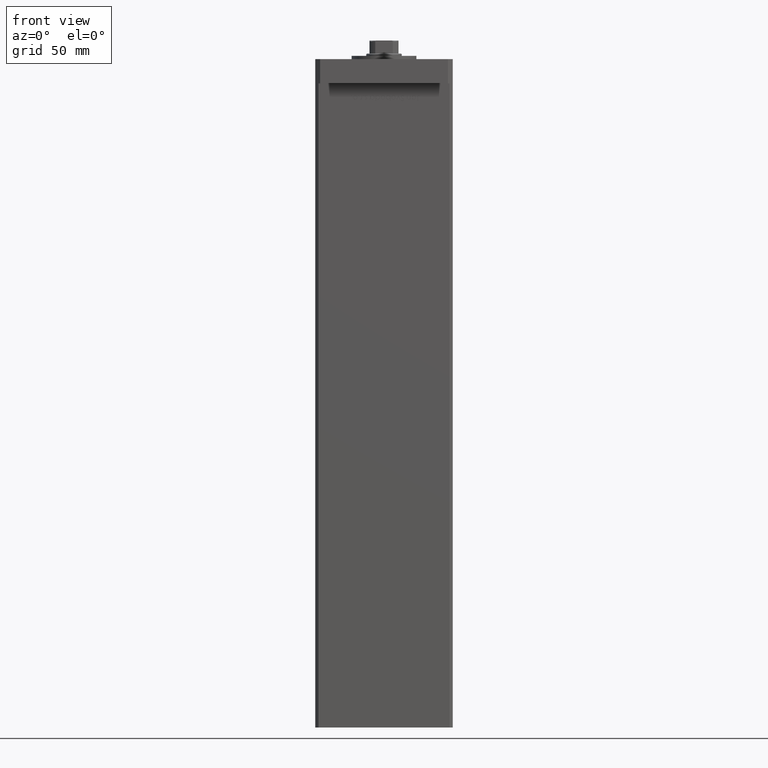
[diagram: clean part render]
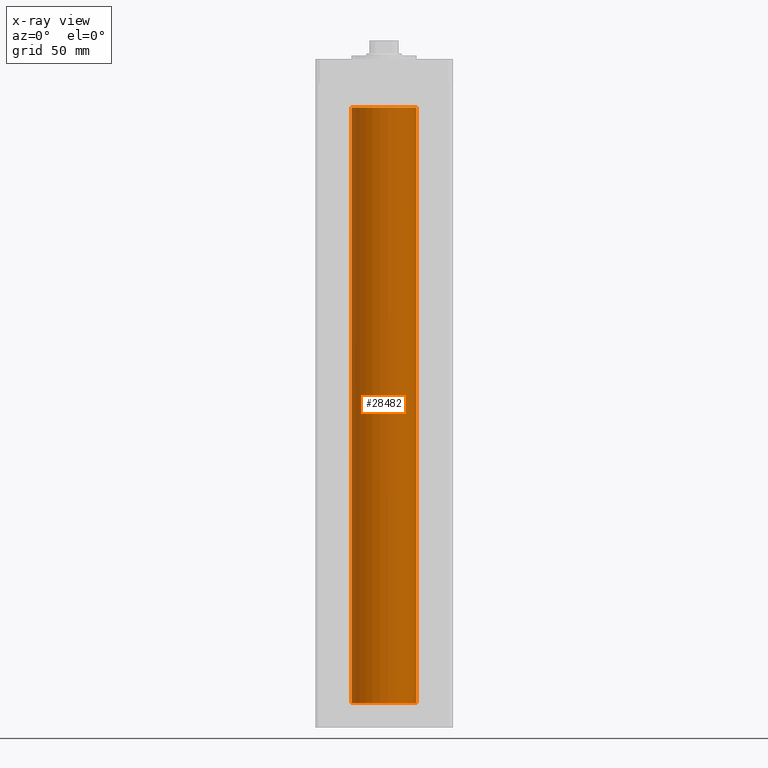
[diagram: x-ray — body ghosted, one internal face saturated and labeled with its STEP entity id]
A machine part, front view, then the same camera in x-ray: the body is ghosted and one INTERNAL B-rep face — a face not visible from any outside direction — is saturated and labeled: STEP entity #28482.
In plain terms, the highlighted cylindrical surface (edge-blend (fillet) strip) has radius 20 mm, axis along (-0, -0, -1).
Its self-contained STEP definition (entity closure, byte-faithful):
#169 = CARTESIAN_POINT ( 'NONE',  ( -20.00000000000000000, 0.000000000000000000, 0.000000000000000000 ) ) ;
#721 = CARTESIAN_POINT ( 'NONE',  ( 0.000000000000000000, 0.000000000000000000, 368.5000000000000000 ) ) ;
#1563 = EDGE_CURVE ( 'NONE', #14499, #13520, #20662, .T. ) ;
#2205 = ORIENTED_EDGE ( 'NONE', *, *, #18758, .T. ) ;
#5276 = CARTESIAN_POINT ( 'NONE',  ( 20.00000000000000000, 2.449293598294706513E-15, 368.5000000000000000 ) ) ;
#5481 = AXIS2_PLACEMENT_3D ( 'NONE', #47864, #10737, #39456 ) ;
#6372 = CARTESIAN_POINT ( 'NONE',  ( 20.00000000000000000, 2.449293598294706513E-15, 368.5000000000000000 ) ) ;
#9121 = VECTOR ( 'NONE', #40671, 1000.000000000000000 ) ;
#10737 = DIRECTION ( 'NONE',  ( -0.000000000000000000, 0.000000000000000000, 1.000000000000000000 ) ) ;
#10990 = LINE ( 'NONE', #6372, #18498 ) ;
#12569 = AXIS2_PLACEMENT_3D ( 'NONE', #721, #34582, #42710 ) ;
#13460 = FACE_OUTER_BOUND ( 'NONE', #15817, .T. ) ;
#13520 = VERTEX_POINT ( 'NONE', #16166 ) ;
#14499 = VERTEX_POINT ( 'NONE', #169 ) ;
#15574 = DIRECTION ( 'NONE',  ( -0.000000000000000000, -0.000000000000000000, -1.000000000000000000 ) ) ;
#15817 = EDGE_LOOP ( 'NONE', ( #20959, #2205, #52757, #39043 ) ) ;
#16166 = CARTESIAN_POINT ( 'NONE',  ( 20.00000000000000000, 2.449293598294706513E-15, 0.000000000000000000 ) ) ;
#18498 = VECTOR ( 'NONE', #15574, 1000.000000000000000 ) ;
#18758 = EDGE_CURVE ( 'NONE', #24092, #13520, #10990, .T. ) ;
#20076 = CARTESIAN_POINT ( 'NONE',  ( -20.00000000000000000, 0.000000000000000000, 368.5000000000000000 ) ) ;
#20662 = CIRCLE ( 'NONE', #24973, 20.00000000000000000 ) ;
#20959 = ORIENTED_EDGE ( 'NONE', *, *, #38566, .T. ) ;
#21655 = CARTESIAN_POINT ( 'NONE',  ( -20.00000000000000000, 0.000000000000000000, 368.5000000000000000 ) ) ;
#24092 = VERTEX_POINT ( 'NONE', #5276 ) ;
#24973 = AXIS2_PLACEMENT_3D ( 'NONE', #50943, #35201, #31131 ) ;
#25365 = CIRCLE ( 'NONE', #5481, 20.00000000000000000 ) ;
#28482 = ADVANCED_FACE ( 'NONE', ( #13460 ), #38652, .F. ) ;
#31131 = DIRECTION ( 'NONE',  ( 1.000000000000000000, 0.000000000000000000, 0.000000000000000000 ) ) ;
#34582 = DIRECTION ( 'NONE',  ( -0.000000000000000000, -0.000000000000000000, -1.000000000000000000 ) ) ;
#35201 = DIRECTION ( 'NONE',  ( -0.000000000000000000, 0.000000000000000000, 1.000000000000000000 ) ) ;
#38135 = VERTEX_POINT ( 'NONE', #21655 ) ;
#38566 = EDGE_CURVE ( 'NONE', #38135, #24092, #25365, .T. ) ;
#38652 = CYLINDRICAL_SURFACE ( 'NONE', #12569, 20.00000000000000000 ) ;
#39043 = ORIENTED_EDGE ( 'NONE', *, *, #49394, .F. ) ;
#39456 = DIRECTION ( 'NONE',  ( 1.000000000000000000, 0.000000000000000000, 0.000000000000000000 ) ) ;
#40671 = DIRECTION ( 'NONE',  ( -0.000000000000000000, -0.000000000000000000, -1.000000000000000000 ) ) ;
#42710 = DIRECTION ( 'NONE',  ( -1.000000000000000000, 0.000000000000000000, 0.000000000000000000 ) ) ;
#47864 = CARTESIAN_POINT ( 'NONE',  ( 0.000000000000000000, 0.000000000000000000, 368.5000000000000000 ) ) ;
#49394 = EDGE_CURVE ( 'NONE', #38135, #14499, #49611, .T. ) ;
#49611 = LINE ( 'NONE', #20076, #9121 ) ;
#50943 = CARTESIAN_POINT ( 'NONE',  ( 0.000000000000000000, 0.000000000000000000, 0.000000000000000000 ) ) ;
#52757 = ORIENTED_EDGE ( 'NONE', *, *, #1563, .F. ) ;